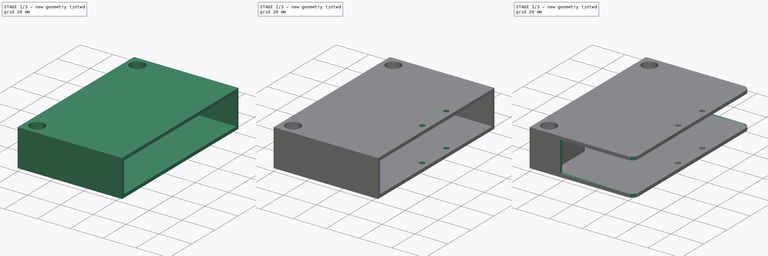
[diagram: build sequence overview — one tinted view per stage of 3, left to right]
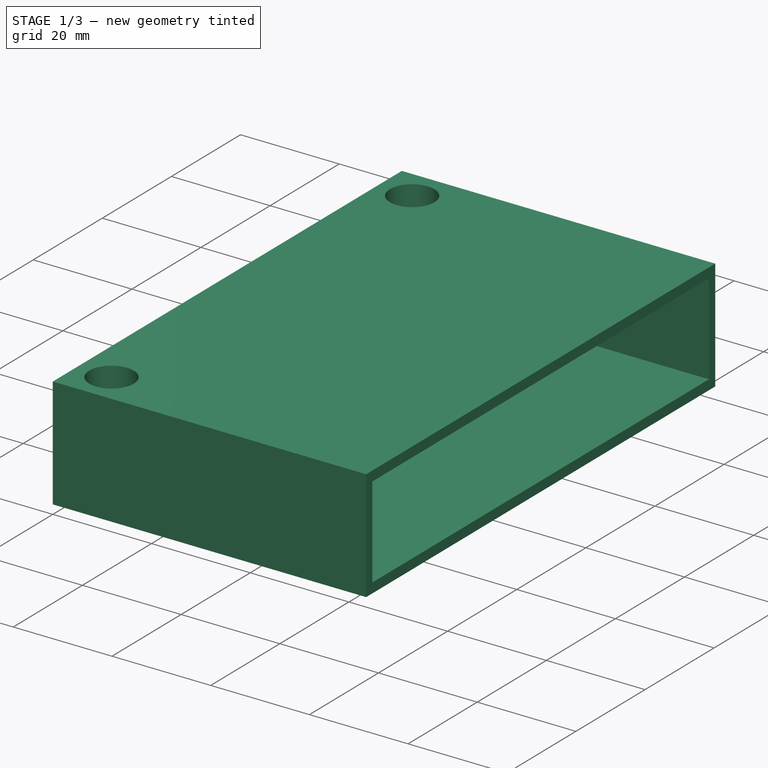
[diagram: stage 1 of 3 — iso view after this stage's code; geometry added in this stage tinted green]
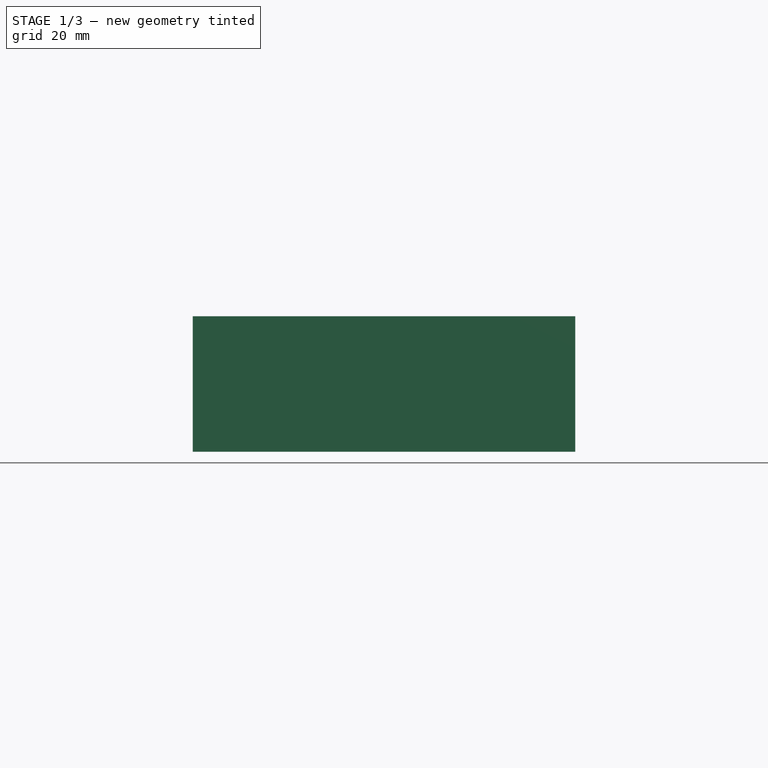
[diagram: stage 1 of 3 — front view after this stage's code; geometry added in this stage tinted green]
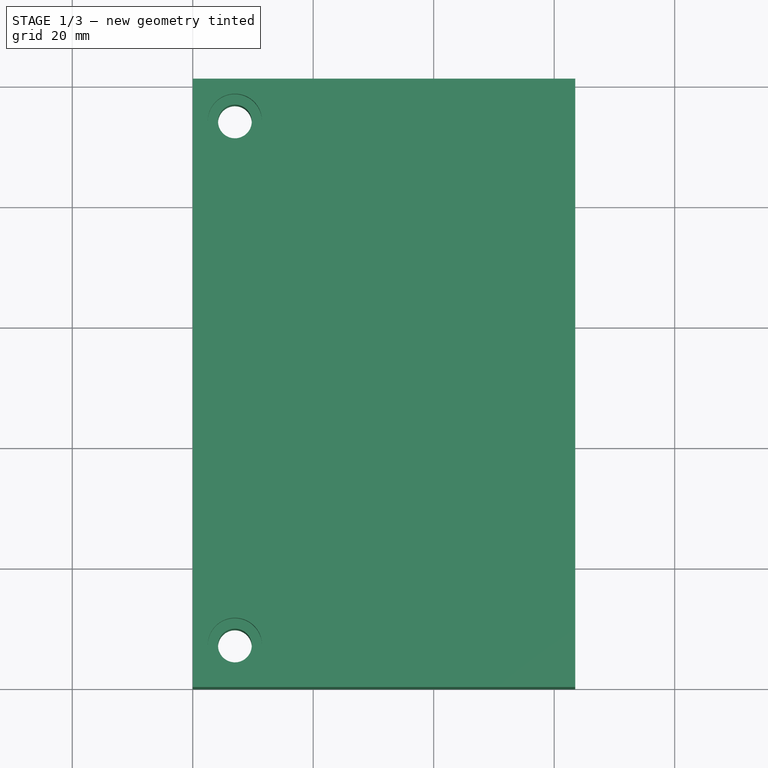
[diagram: stage 1 of 3 — top view after this stage's code; geometry added in this stage tinted green]
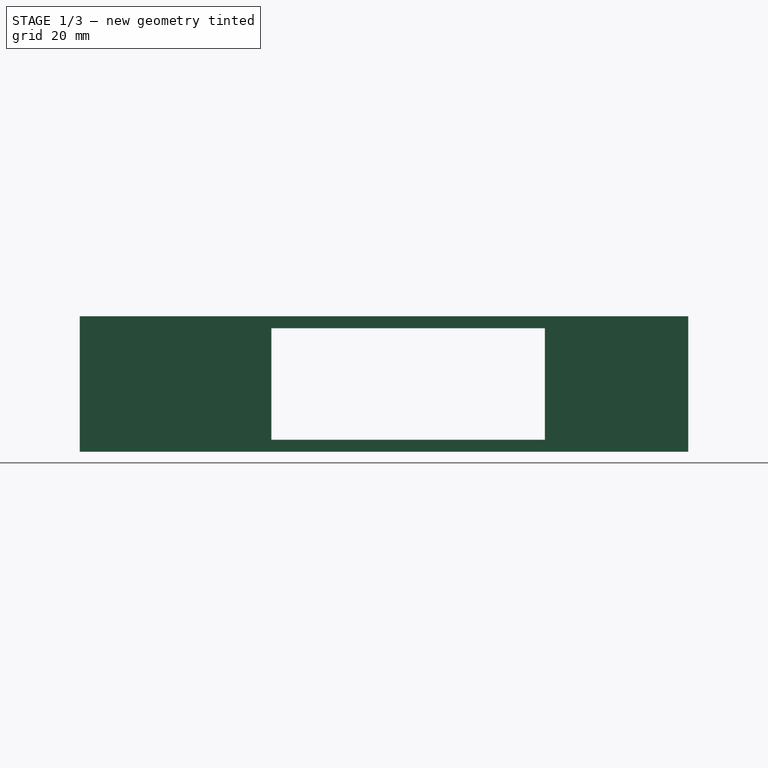
[diagram: stage 1 of 3 — right view after this stage's code; geometry added in this stage tinted green]
FCSTD DOCUMENT  (FreeCAD 1.0R39109 (Git))
Label: main_breaker_mount
License: All rights reserved
LicenseURL: https://en.wikipedia.org/wiki/All_rights_reserved
objects: Sketcher::SketchObject×6, PartDesign::Pocket×5, PartDesign::Fillet×2, PartDesign::Pad×1, PartDesign::Body×1
note: 37 computed .brp shape members not serialized (recipe doc carries the construction recipe); baked Part::Feature solids carry a one-line shape summary decoded from their .brp

FEATURE [Sketcher::SketchObject] Sketch
  ArcFitTolerance = 1e-06
  AttachmentSupport = -> [XY_Plane]
  FullyConstrained = true
  MakeInternals = false
  MapMode = 5
  sketch-geometry (14):
    g0: LineSegment StartX=0 StartY=0 StartZ=0 EndX=63.5 EndY=0 EndZ=0
    g1: LineSegment StartX=63.5 StartY=0 StartZ=0 EndX=63.5 EndY=101 EndZ=0
    g2: LineSegment StartX=63.5 StartY=101 StartZ=0 EndX=0 EndY=101 EndZ=0
    g3: LineSegment StartX=0 StartY=101 StartZ=0 EndX=0 EndY=0 EndZ=0
    g4: Circle CenterX=7 CenterY=94 CenterZ=0 NormalX=0 NormalY=0 NormalZ=1 AngleXU=0 Radius=2.8
    g5: Circle CenterX=7 CenterY=7 CenterZ=0 NormalX=0 NormalY=0 NormalZ=1 AngleXU=0 Radius=2.8
    g6: LineSegment [constr] StartX=0 StartY=77 StartZ=0 EndX=0 EndY=32 EndZ=0
    g7: LineSegment [constr] StartX=0 StartY=77 StartZ=0 EndX=14 EndY=77 EndZ=0
    g8: LineSegment [constr] StartX=0 StartY=32 StartZ=0 EndX=14 EndY=32 EndZ=0
    g9: LineSegment [constr] StartX=14 StartY=77 StartZ=0 EndX=14 EndY=99 EndZ=0
    g10: LineSegment [constr] StartX=14 StartY=32 StartZ=0 EndX=14 EndY=2 EndZ=0
    g11: LineSegment [constr] StartX=14 StartY=99 StartZ=0 EndX=63.5 EndY=99 EndZ=0
    g12: LineSegment [constr] StartX=63.5 StartY=99 StartZ=0 EndX=63.5 EndY=2 EndZ=0
    g13: LineSegment [constr] StartX=63.5 StartY=2 StartZ=0 EndX=14 EndY=2 EndZ=0
  constraints (41):
    c: Coincident(g0,g1)
    c: Coincident(g1,g2)
    c: Coincident(g2,g3)
    c: Coincident(g3,g0)
    c: Horizontal(g0)
    c: Horizontal(g2)
    c: Vertical(g1)
    c: Vertical(g3)
    c: Coincident(g0,g-1)
    c: PointOnObject(g6,g3)
    c: PointOnObject(g6,g3)
    c: Coincident(g7,g6)
    c: Horizontal(g7)
    c: Coincident(g8,g6)
    c: Horizontal(g8)
    c: DistanceY(g6,g6) = 45
    c: DistanceX(g7,g7) = 14
    c: Equal(g7,g8)
    c: Distance(g9) = 22
    c: Coincident(g9,g7)
    c: Vertical(g9)
    c: Distance(g10) = 30
    c: Coincident(g10,g8)
    c: Vertical(g10)
    c: Distance(g11) = 49.5
    c: Coincident(g11,g9)
    c: Horizontal(g11)
    c: Coincident(g12,g11)
    c: Vertical(g12)
    c: Coincident(g13,g12)
    c: Coincident(g13,g10)
    c: Horizontal(g13)
    c: Diameter(g4) = 5.6
    c: Equal(g4,g5)
    c: DistanceY(g10) = 2
    c: DistanceY(g9,g2) = 2
    c: DistanceX(g2,g4) = 7
    c: DistanceY(g4,g2) = 7
    c: DistanceY(g0,g5) = 7
    c: DistanceX(g5,g4) = 0
    c: DistanceX(g11,g1) = 0
FEATURE [PartDesign::Pad] Pad
  Direction = (0,0,1)
  Length = 22.5
  Length2 = 10
  Profile = -> Sketch
  ReferenceAxis = -> Sketch [N_Axis]
  Refine = true
  Suppressed = false
  Type = 0
FEATURE [Sketcher::SketchObject] Sketch001
  ArcFitTolerance = 1e-06
  AttachmentOffset = pos=(0,0,-2) rot=(0,0,1;0rad)
  AttachmentSupport = -> [Pad]
  FullyConstrained = true
  MakeInternals = false
  MapMode = 5
  Placement = pos=(0,0,20.5) rot=(0,0,1;0rad)
  expr: Constraints[15] = Sketch.Constraints[15]
  expr: Constraints[16] = Sketch.Constraints[16]
  expr: Constraints[18] = Sketch.Constraints[18]
  expr: Constraints[21] = Sketch.Constraints[21]
  expr: Constraints[24] = Sketch.Constraints[24]
  expr: Constraints[32] = Sketch.Constraints[32]
  expr: Constraints[34] = Sketch.Constraints[34]
  expr: Constraints[35] = Sketch.Constraints[35]
  expr: Constraints[36] = Sketch.Constraints[36]
  expr: Constraints[37] = Sketch.Constraints[37]
  expr: Constraints[38] = Sketch.Constraints[38]
  expr: Constraints[39] = Sketch.Constraints[39]
  expr: Constraints[40] = Sketch.Constraints[40]
  sketch-geometry (22):
    g0: LineSegment [constr] StartX=0 StartY=0 StartZ=0 EndX=63.5 EndY=0 EndZ=0
    g1: LineSegment [constr] StartX=63.5 StartY=0 StartZ=0 EndX=63.5 EndY=101 EndZ=0
    g2: LineSegment [constr] StartX=63.5 StartY=101 StartZ=0 EndX=0 EndY=101 EndZ=0
    g3: LineSegment [constr] StartX=0 StartY=101 StartZ=0 EndX=0 EndY=0 EndZ=0
    g4: Circle [constr] CenterX=7 CenterY=94 CenterZ=0 NormalX=0 NormalY=0 NormalZ=1 AngleXU=0 Radius=2.8
    g5: Circle [constr] CenterX=7 CenterY=7 CenterZ=0 NormalX=0 NormalY=0 NormalZ=1 AngleXU=0 Radius=2.8
    g6: LineSegment [constr] StartX=-1e-16 StartY=77 StartZ=0 EndX=0 EndY=32 EndZ=0
    g7: LineSegment [constr] StartX=-1e-16 StartY=77 StartZ=0 EndX=14 EndY=77 EndZ=0
    g8: LineSegment [constr] StartX=0 StartY=32 StartZ=0 EndX=14 EndY=32 EndZ=0
    g9: LineSegment [constr] StartX=14 StartY=77 StartZ=0 EndX=14 EndY=99 EndZ=0
    g10: LineSegment [constr] StartX=14 StartY=32 StartZ=0 EndX=14 EndY=2 EndZ=0
    g11: LineSegment [constr] StartX=14 StartY=99 StartZ=0 EndX=63.5 EndY=99 EndZ=0
    g12: LineSegment [constr] StartX=63.5 StartY=99 StartZ=0 EndX=63.5 EndY=2 EndZ=0
    g13: LineSegment [constr] StartX=63.5 StartY=2 StartZ=0 EndX=14 EndY=2 EndZ=0
    g14: LineSegment StartX=63.5 StartY=99.2 StartZ=0 EndX=63.5 EndY=1.8 EndZ=0
    g15: LineSegment StartX=0 StartY=31.8 StartZ=0 EndX=13.6 EndY=31.8 EndZ=0
    g16: LineSegment StartX=13.6 StartY=31.8 StartZ=0 EndX=13.6 EndY=1.8 EndZ=0
    g17: LineSegment StartX=13.6 StartY=1.8 StartZ=0 EndX=63.5 EndY=1.8 EndZ=0
    g18: LineSegment StartX=0 StartY=77.2 StartZ=0 EndX=13.6 EndY=77.2 EndZ=0
    g19: LineSegment StartX=13.6 StartY=77.2 StartZ=0 EndX=13.6 EndY=99.2 EndZ=0
    g20: LineSegment StartX=13.6 StartY=99.2 StartZ=0 EndX=63.5 EndY=99.2 EndZ=0
    g21: LineSegment StartX=0 StartY=77.2 StartZ=0 EndX=0 EndY=31.8 EndZ=0
  constraints (65):
    c: Coincident(g0,g1)
    c: Coincident(g1,g2)
    c: Coincident(g2,g3)
    c: Coincident(g3,g0)
    c: Horizontal(g0)
    c: Horizontal(g2)
    c: Vertical(g1)
    c: Vertical(g3)
    c: Coincident(g0,g-1)
    c: PointOnObject(g6,g3)
    c: PointOnObject(g6,g3)
    c: Coincident(g7,g6)
    c: Horizontal(g7)
    c: Coincident(g8,g6)
    c: Horizontal(g8)
    c: DistanceY(g6,g6) = 45
    c: DistanceX(g7,g7) = 14
    c: Equal(g7,g8)
    c: Distance(g9) = 22
    c: Coincident(g9,g7)
    c: Vertical(g9)
    c: Distance(g10) = 30
    c: Coincident(g10,g8)
    c: Vertical(g10)
    c: Distance(g11) = 49.5
    c: Coincident(g11,g9)
    c: Horizontal(g11)
    c: Coincident(g12,g11)
    c: Vertical(g12)
    c: Coincident(g13,g12)
    c: Coincident(g13,g10)
    c: Horizontal(g13)
    c: Diameter(g4) = 5.6
    c: Equal(g4,g5)
    c: DistanceY(g10) = 2
    c: DistanceY(g9,g2) = 2
    c: DistanceX(g2,g4) = 7
    c: DistanceY(g4,g2) = 7
    c: DistanceY(g0,g5) = 7
    c: DistanceX(g5,g4) = 0
    c: DistanceX(g11,g1) = 0
    c: PointOnObject(g14,g1)
    c: PointOnObject(g14,g1)
    c: PointOnObject(g15,g3)
    c: Horizontal(g15)
    c: Coincident(g16,g15)
    c: Vertical(g16)
    c: Coincident(g17,g16)
    c: Coincident(g17,g14)
    c: Horizontal(g17)
    c: DistanceY(g15,g6) = 0.2
    c: DistanceX(g15,g8) = 0.4
    c: DistanceY(g16,g10) = 0.2
    c: PointOnObject(g18,g3)
    c: Horizontal(g18)
    c: Coincident(g19,g18)
    c: Vertical(g19)
    c: Coincident(g20,g19)
    c: Coincident(g20,g14)
    c: Horizontal(g20)
    c: DistanceY(g6,g18) = 0.2
    c: Equal(g18,g15)
    c: Coincident(g21,g18)
    c: Coincident(g21,g15)
    c: DistanceY(g9,g19) = 0.2
FEATURE [PartDesign::Pocket] Pocket
  BaseFeature = -> Pad
  Direction = (0,0,-1)
  Length = 18.5
  Length2 = 5
  Profile = -> Sketch001
  ReferenceAxis = -> Sketch001 [N_Axis]
  Refine = true
  Suppressed = false
  Type = 0
FEATURE [Sketcher::SketchObject] Sketch002
  ArcFitTolerance = 1e-06
  AttachmentSupport = -> [Pocket]
  FullyConstrained = true
  MakeInternals = false
  MapMode = 5
  Placement = pos=(0,0,22.5) rot=(0,0,1;0rad)
  expr: Constraints[15] = Sketch.Constraints[15]
  expr: Constraints[16] = Sketch.Constraints[16]
  expr: Constraints[18] = Sketch.Constraints[18]
  expr: Constraints[21] = Sketch.Constraints[21]
  expr: Constraints[24] = Sketch.Constraints[24]
  expr: Constraints[32] = Sketch.Constraints[32]
  expr: Constraints[34] = Sketch.Constraints[34]
  expr: Constraints[35] = Sketch.Constraints[35]
  expr: Constraints[36] = Sketch.Constraints[36]
  expr: Constraints[37] = Sketch.Constraints[37]
  expr: Constraints[38] = Sketch.Constraints[38]
  expr: Constraints[39] = Sketch.Constraints[39]
  expr: Constraints[40] = Sketch.Constraints[40]
  sketch-geometry (16):
    g0: LineSegment [constr] StartX=0 StartY=0 StartZ=0 EndX=63.5 EndY=0 EndZ=0
    g1: LineSegment [constr] StartX=63.5 StartY=0 StartZ=0 EndX=63.5 EndY=101 EndZ=0
    g2: LineSegment [constr] StartX=63.5 StartY=101 StartZ=0 EndX=0 EndY=101 EndZ=0
    g3: LineSegment [constr] StartX=0 StartY=101 StartZ=0 EndX=0 EndY=0 EndZ=0
    g4: Circle [constr] CenterX=7 CenterY=94 CenterZ=0 NormalX=0 NormalY=0 NormalZ=1 AngleXU=0 Radius=2.8
    g5: Circle [constr] CenterX=7 CenterY=7 CenterZ=0 NormalX=0 NormalY=0 NormalZ=1 AngleXU=0 Radius=2.8
    g6: LineSegment [constr] StartX=0 StartY=77 StartZ=0 EndX=0 EndY=32 EndZ=0
    g7: LineSegment [constr] StartX=0 StartY=77 StartZ=0 EndX=14 EndY=77 EndZ=0
    g8: LineSegment [constr] StartX=0 StartY=32 StartZ=0 EndX=14 EndY=32 EndZ=0
    g9: LineSegment [constr] StartX=14 StartY=77 StartZ=0 EndX=14 EndY=99 EndZ=0
    g10: LineSegment [constr] StartX=14 StartY=32 StartZ=0 EndX=14 EndY=2 EndZ=0
    g11: LineSegment [constr] StartX=14 StartY=99 StartZ=0 EndX=63.5 EndY=99 EndZ=0
    g12: LineSegment [constr] StartX=63.5 StartY=99 StartZ=0 EndX=63.5 EndY=2 EndZ=0
    g13: LineSegment [constr] StartX=63.5 StartY=2 StartZ=0 EndX=14 EndY=2 EndZ=0
    g14: Circle CenterX=7 CenterY=94 CenterZ=0 NormalX=0 NormalY=0 NormalZ=1 AngleXU=0 Radius=4.5
    g15: Circle CenterX=7 CenterY=7 CenterZ=0 NormalX=0 NormalY=0 NormalZ=1 AngleXU=0 Radius=4.5
  constraints (45):
    c: Coincident(g0,g1)
    c: Coincident(g1,g2)
    c: Coincident(g2,g3)
    c: Coincident(g3,g0)
    c: Horizontal(g0)
    c: Horizontal(g2)
    c: Vertical(g1)
    c: Vertical(g3)
    c: Coincident(g0,g-1)
    c: PointOnObject(g6,g3)
    c: PointOnObject(g6,g3)
    c: Coincident(g7,g6)
    c: Horizontal(g7)
    c: Coincident(g8,g6)
    c: Horizontal(g8)
    c: DistanceY(g6,g6) = 45
    c: DistanceX(g7,g7) = 14
    c: Equal(g7,g8)
    c: Distance(g9) = 22
    c: Coincident(g9,g7)
    c: Vertical(g9)
    c: Distance(g10) = 30
    c: Coincident(g10,g8)
    c: Vertical(g10)
    c: Distance(g11) = 49.5
    c: Coincident(g11,g9)
    c: Horizontal(g11)
    c: Coincident(g12,g11)
    c: Vertical(g12)
    c: Coincident(g13,g12)
    c: Coincident(g13,g10)
    c: Horizontal(g13)
    c: Diameter(g4) = 5.6
    c: Equal(g4,g5)
    c: DistanceY(g10) = 2
    c: DistanceY(g9,g2) = 2
    c: DistanceX(g2,g4) = 7
    c: DistanceY(g4,g2) = 7
    c: DistanceY(g0,g5) = 7
    c: DistanceX(g5,g4) = 0
    c: DistanceX(g11,g1) = 0
    c: Coincident(g14,g4)
    c: Coincident(g15,g5)
    c: Diameter(g14) = 9
    c: Equal(g14,g15)
FEATURE [PartDesign::Pocket] Pocket001
  BaseFeature = -> Pocket
  Direction = (0,0,-1)
  Length = 6
  Length2 = 5
  Profile = -> Sketch002
  ReferenceAxis = -> Sketch002 [N_Axis]
  Refine = true
  Suppressed = false
  Type = 0
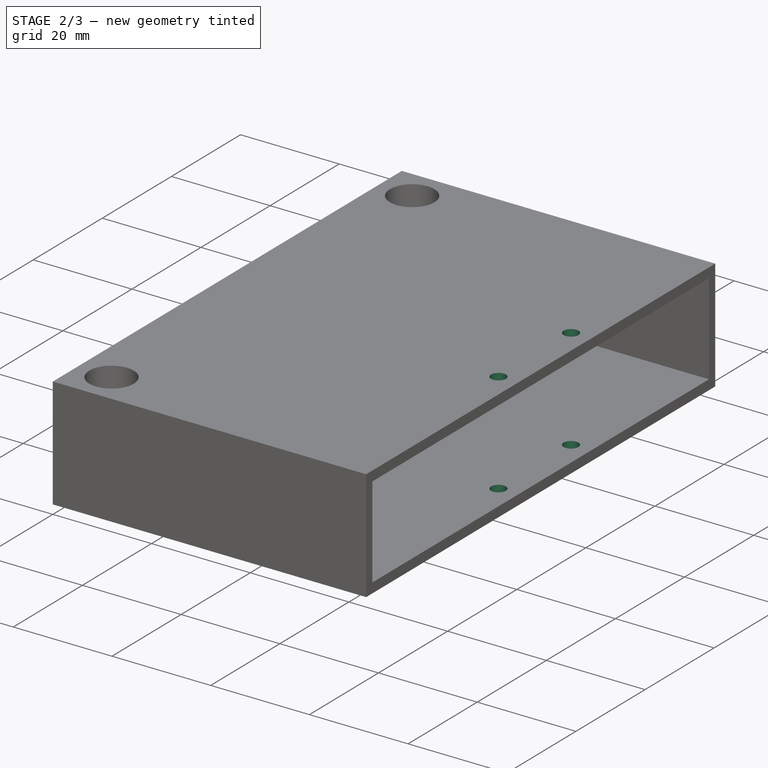
[diagram: stage 2 of 3 — iso view after this stage's code; geometry added in this stage tinted green]
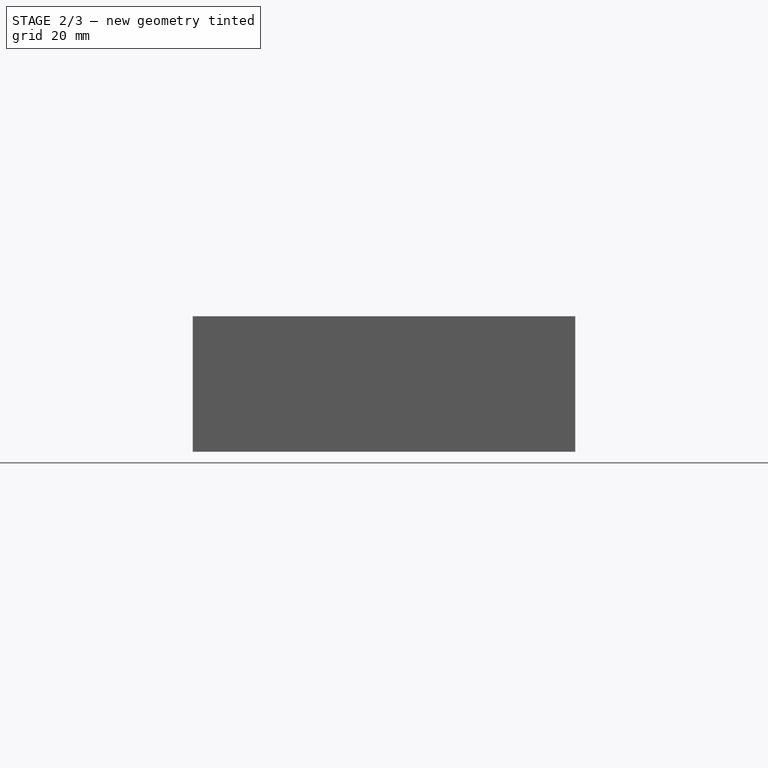
[diagram: stage 2 of 3 — front view after this stage's code; geometry added in this stage tinted green]
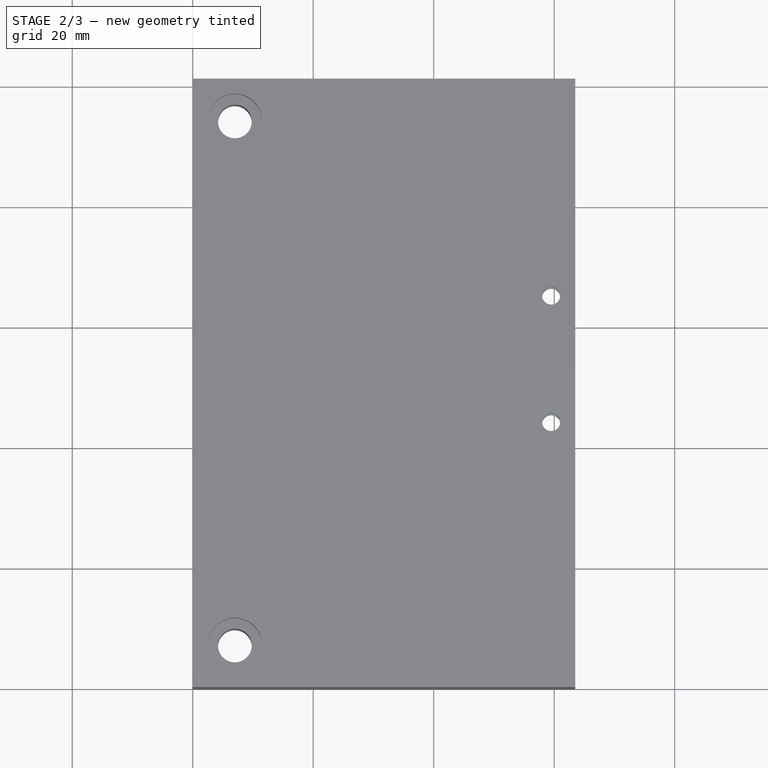
[diagram: stage 2 of 3 — top view after this stage's code; geometry added in this stage tinted green]
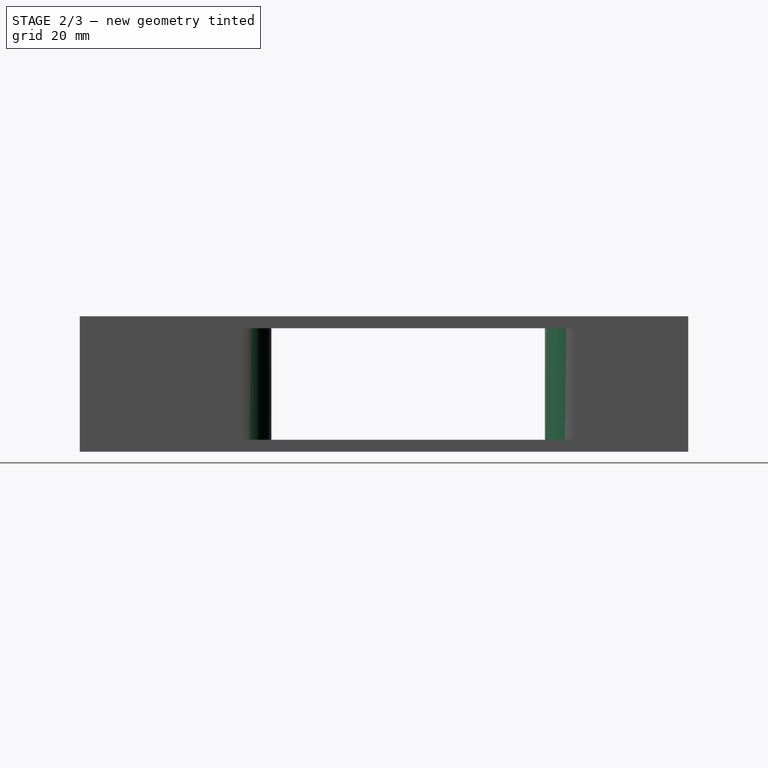
[diagram: stage 2 of 3 — right view after this stage's code; geometry added in this stage tinted green]
FEATURE [Sketcher::SketchObject] Sketch003
  ArcFitTolerance = 1e-06
  AttachmentSupport = -> [Pocket001]
  FullyConstrained = true
  MakeInternals = false
  MapMode = 5
  Placement = pos=(0,0,22.5) rot=(0,0,1;0rad)
  expr: Constraints[15] = Sketch.Constraints[15]
  expr: Constraints[16] = Sketch.Constraints[16]
  expr: Constraints[18] = Sketch.Constraints[18]
  expr: Constraints[21] = Sketch.Constraints[21]
  expr: Constraints[24] = Sketch.Constraints[24]
  expr: Constraints[32] = Sketch.Constraints[32]
  expr: Constraints[34] = Sketch.Constraints[34]
  expr: Constraints[35] = Sketch.Constraints[35]
  expr: Constraints[36] = Sketch.Constraints[36]
  expr: Constraints[37] = Sketch.Constraints[37]
  expr: Constraints[38] = Sketch.Constraints[38]
  expr: Constraints[39] = Sketch.Constraints[39]
  expr: Constraints[40] = Sketch.Constraints[40]
  sketch-geometry (16):
    g0: LineSegment [constr] StartX=0 StartY=0 StartZ=0 EndX=63.5 EndY=0 EndZ=0
    g1: LineSegment [constr] StartX=63.5 StartY=0 StartZ=0 EndX=63.5 EndY=101 EndZ=0
    g2: LineSegment [constr] StartX=63.5 StartY=101 StartZ=0 EndX=0 EndY=101 EndZ=0
    g3: LineSegment [constr] StartX=0 StartY=101 StartZ=0 EndX=0 EndY=0 EndZ=0
    g4: Circle [constr] CenterX=7 CenterY=94 CenterZ=0 NormalX=0 NormalY=0 NormalZ=1 AngleXU=0 Radius=2.8
    g5: Circle [constr] CenterX=7 CenterY=7 CenterZ=0 NormalX=0 NormalY=0 NormalZ=1 AngleXU=0 Radius=2.8
    g6: LineSegment [constr] StartX=0 StartY=77 StartZ=0 EndX=0 EndY=32 EndZ=0
    g7: LineSegment [constr] StartX=0 StartY=77 StartZ=0 EndX=14 EndY=77 EndZ=0
    g8: LineSegment [constr] StartX=0 StartY=32 StartZ=0 EndX=14 EndY=32 EndZ=0
    g9: LineSegment [constr] StartX=14 StartY=77 StartZ=0 EndX=14 EndY=99 EndZ=0
    g10: LineSegment [constr] StartX=14 StartY=32 StartZ=0 EndX=14 EndY=2 EndZ=0
    g11: LineSegment [constr] StartX=14 StartY=99 StartZ=0 EndX=63.5 EndY=99 EndZ=0
    g12: LineSegment [constr] StartX=63.5 StartY=99 StartZ=0 EndX=63.5 EndY=2 EndZ=0
    g13: LineSegment [constr] StartX=63.5 StartY=2 StartZ=0 EndX=14 EndY=2 EndZ=0
    g14: Circle CenterX=59.5 CenterY=65 CenterZ=0 NormalX=0 NormalY=0 NormalZ=1 AngleXU=0 Radius=1.5
    g15: Circle CenterX=59.5 CenterY=44 CenterZ=0 NormalX=0 NormalY=0 NormalZ=1 AngleXU=0 Radius=1.5
  constraints (47):
    c: Coincident(g0,g1)
    c: Coincident(g1,g2)
    c: Coincident(g2,g3)
    c: Coincident(g3,g0)
    c: Horizontal(g0)
    c: Horizontal(g2)
    c: Vertical(g1)
    c: Vertical(g3)
    c: Coincident(g0,g-1)
    c: PointOnObject(g6,g3)
    c: PointOnObject(g6,g3)
    c: Coincident(g7,g6)
    c: Horizontal(g7)
    c: Coincident(g8,g6)
    c: Horizontal(g8)
    c: DistanceY(g6,g6) = 45
    c: DistanceX(g7,g7) = 14
    c: Equal(g7,g8)
    c: Distance(g9) = 22
    c: Coincident(g9,g7)
    c: Vertical(g9)
    c: Distance(g10) = 30
    c: Coincident(g10,g8)
    c: Vertical(g10)
    c: Distance(g11) = 49.5
    c: Coincident(g11,g9)
    c: Horizontal(g11)
    c: Coincident(g12,g11)
    c: Vertical(g12)
    c: Coincident(g13,g12)
    c: Coincident(g13,g10)
    c: Horizontal(g13)
    c: Diameter(g4) = 5.6
    c: Equal(g4,g5)
    c: DistanceY(g10) = 2
    c: DistanceY(g9,g2) = 2
    c: DistanceX(g2,g4) = 7
    c: DistanceY(g4,g2) = 7
    c: DistanceY(g0,g5) = 7
    c: DistanceX(g5,g4) = 0
    c: DistanceX(g11,g1) = 0
    c: DistanceY(g14,g7) = 12
    c: DistanceY(g8,g15) = 12
    c: Equal(g14,g15)
    c: Diameter(g14) = 3
    c: DistanceX(g15,g14) = 0
    c: DistanceX(g14,g11) = 4
FEATURE [PartDesign::Pocket] Pocket002
  BaseFeature = -> Pocket001
  Direction = (0,0,-1)
  Length = 5
  Length2 = 5
  Profile = -> Sketch003
  ReferenceAxis = -> Sketch003 [N_Axis]
  Refine = true
  Suppressed = false
  Type = 1
FEATURE [PartDesign::Fillet] Fillet
  Base = -> Pocket002 [Edge37,Edge46]
  BaseFeature = -> Pocket002
  Radius = 5
  Refine = true
  SupportTransform = false
  Suppressed = false
  UseAllEdges = false
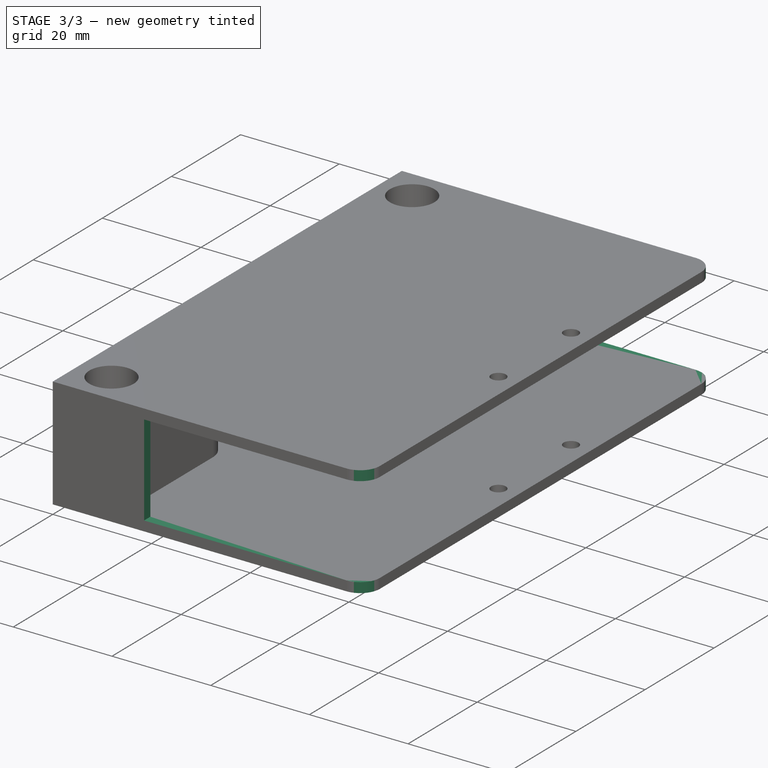
[diagram: stage 3 of 3 — iso view after this stage's code; geometry added in this stage tinted green]
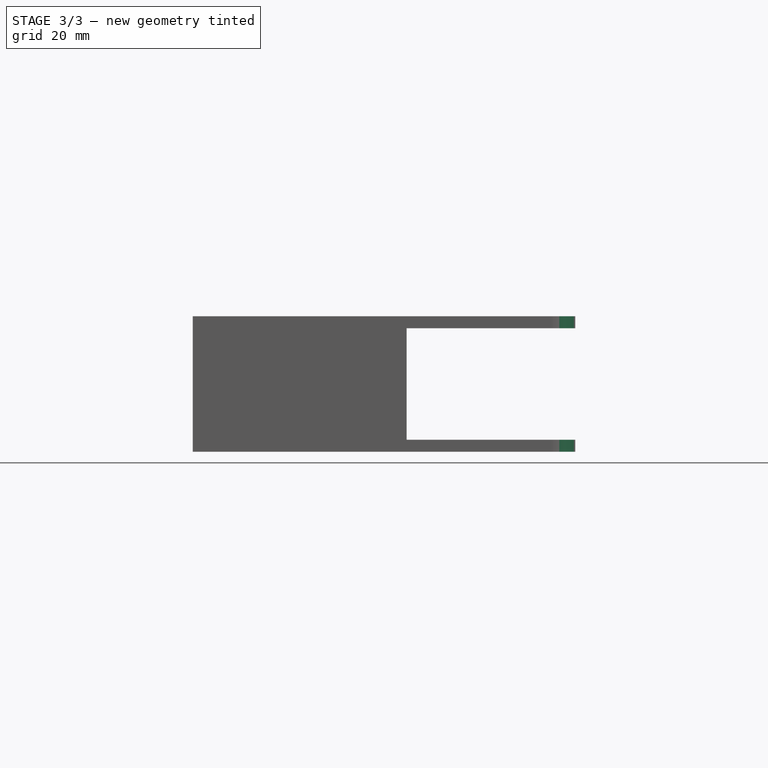
[diagram: stage 3 of 3 — front view after this stage's code; geometry added in this stage tinted green]
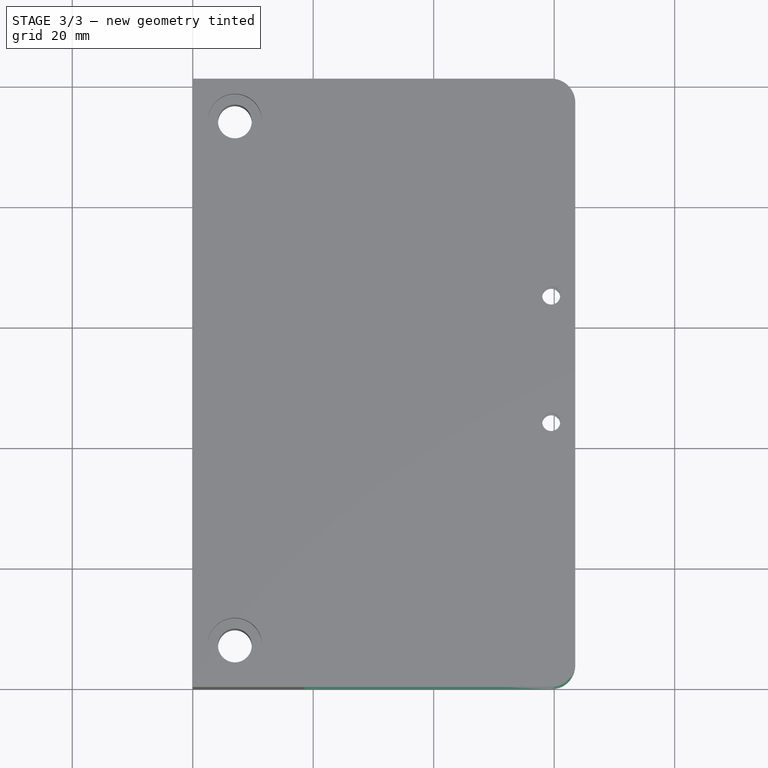
[diagram: stage 3 of 3 — top view after this stage's code; geometry added in this stage tinted green]
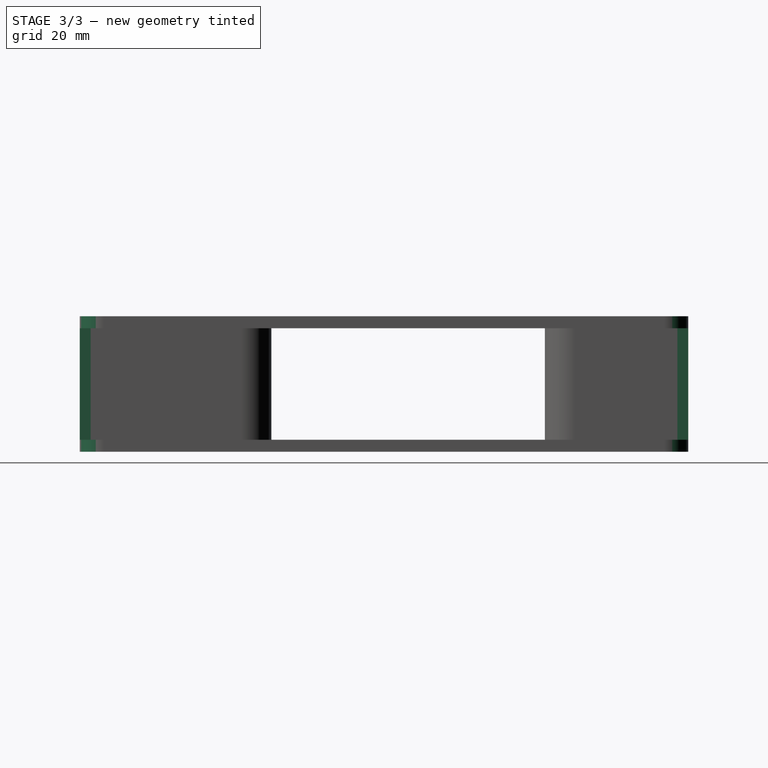
[diagram: stage 3 of 3 — right view after this stage's code; geometry added in this stage tinted green]
FEATURE [Sketcher::SketchObject] Sketch004
  ArcFitTolerance = 1e-06
  AttachmentSupport = -> [Fillet]
  FullyConstrained = true
  MakeInternals = false
  MapMode = 5
  Placement = pos=(0,101,0) rot=(0,0.707107,0.707107;3.14159rad)
  sketch-geometry (4):
    g0: LineSegment StartX=-63.5 StartY=20.5 StartZ=0 EndX=-63.5 EndY=2 EndZ=0
    g1: LineSegment StartX=-63.5 StartY=2 StartZ=0 EndX=-35.5 EndY=2 EndZ=0
    g2: LineSegment StartX=-35.5 StartY=2 StartZ=0 EndX=-35.5 EndY=20.5 EndZ=0
    g3: LineSegment StartX=-35.5 StartY=20.5 StartZ=0 EndX=-63.5 EndY=20.5 EndZ=0
  constraints (12):
    c: Coincident(g0,g1)
    c: Coincident(g1,g2)
    c: Coincident(g2,g3)
    c: Coincident(g3,g0)
    c: Vertical(g0)
    c: Vertical(g2)
    c: Horizontal(g1)
    c: Horizontal(g3)
    c: DistanceX(g3,g3) = 28
    c: DistanceY(g0,g0) = 18.5
    c: DistanceY(g1) = 2
    c: DistanceX(g0) = -63.5
FEATURE [PartDesign::Pocket] Pocket003
  BaseFeature = -> Fillet
  Direction = (0,-1,2e-16)
  Length = 2
  Length2 = 5
  Profile = -> Sketch004
  ReferenceAxis = -> Sketch004 [N_Axis]
  Refine = true
  Suppressed = false
  Type = 0
FEATURE [Sketcher::SketchObject] Sketch005
  ArcFitTolerance = 1e-06
  AttachmentSupport = -> [Pocket003]
  FullyConstrained = true
  MakeInternals = false
  MapMode = 5
  Placement = pos=(0,0,0) rot=(1,0,0;1.5708rad)
  sketch-geometry (4):
    g0: LineSegment StartX=63.5 StartY=20.5 StartZ=0 EndX=18.5 EndY=20.5 EndZ=0
    g1: LineSegment StartX=18.5 StartY=20.5 StartZ=0 EndX=18.5 EndY=2 EndZ=0
    g2: LineSegment StartX=18.5 StartY=2 StartZ=0 EndX=63.5 EndY=2 EndZ=0
    g3: LineSegment StartX=63.5 StartY=2 StartZ=0 EndX=63.5 EndY=20.5 EndZ=0
  constraints (12):
    c: Coincident(g0,g1)
    c: Coincident(g1,g2)
    c: Coincident(g2,g3)
    c: Coincident(g3,g0)
    c: Horizontal(g0)
    c: Horizontal(g2)
    c: Vertical(g1)
    c: Vertical(g3)
    c: DistanceY(g1,g1) = 18.5
    c: DistanceY(g1) = 2
    c: DistanceX(g0,g0) = 45
    c: DistanceX(g1) = 18.5
FEATURE [PartDesign::Pocket] Pocket004
  BaseFeature = -> Pocket003
  Direction = (0,1,-2e-16)
  Length = 2
  Length2 = 5
  Profile = -> Sketch005
  ReferenceAxis = -> Sketch005 [N_Axis]
  Refine = true
  Suppressed = false
  Type = 0
FEATURE [PartDesign::Fillet] Fillet001
  Base = -> Pocket004 [Edge39,Edge47,Edge36,Edge32]
  BaseFeature = -> Pocket004
  Radius = 4
  Refine = true
  SupportTransform = false
  Suppressed = false
  UseAllEdges = false
FEATURE [PartDesign::Body] Body
  AllowCompound = false
  Group = -> [Sketch,Pad,Sketch001,Pocket,Sketch002,Pocket001,Sketch003,Pocket002,Fillet,Sketch004,Pocket003,Sketch005,Pocket004,Fillet001]
  Origin = -> Origin
  Tip = -> Fillet001
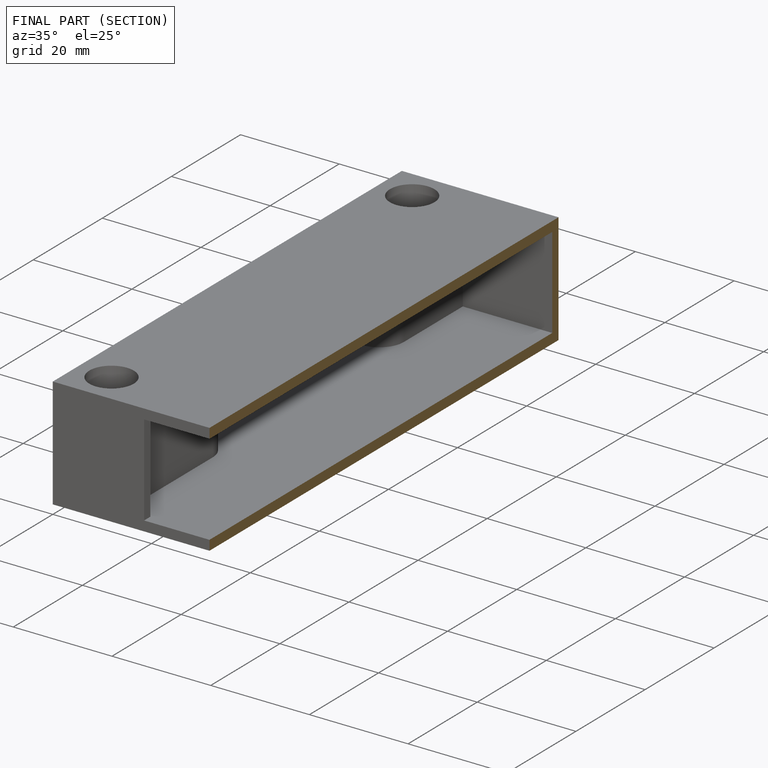
[diagram: finished part — half-section view (interior)]
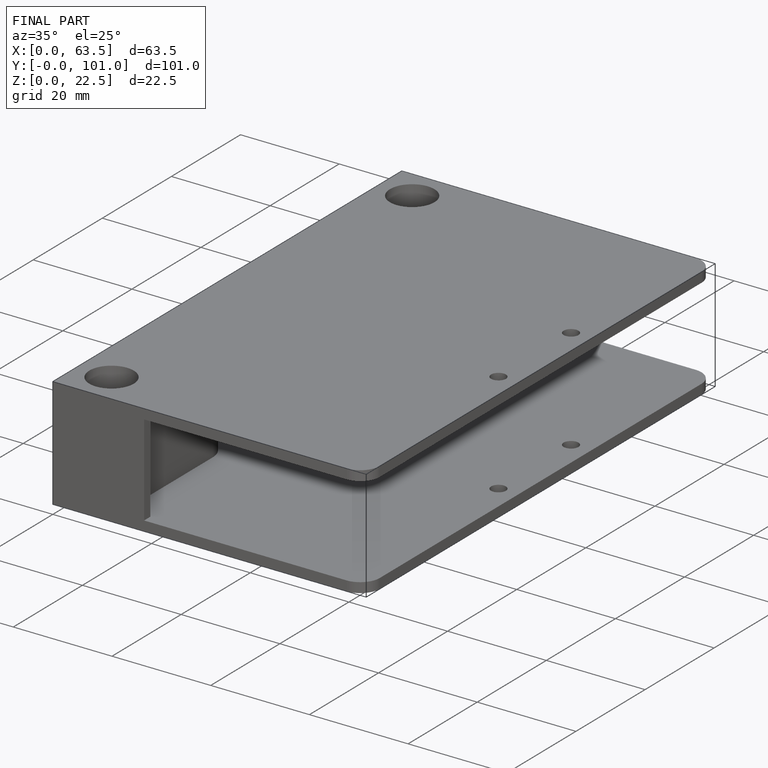
[diagram: finished part — iso view with bounding-box wireframe]
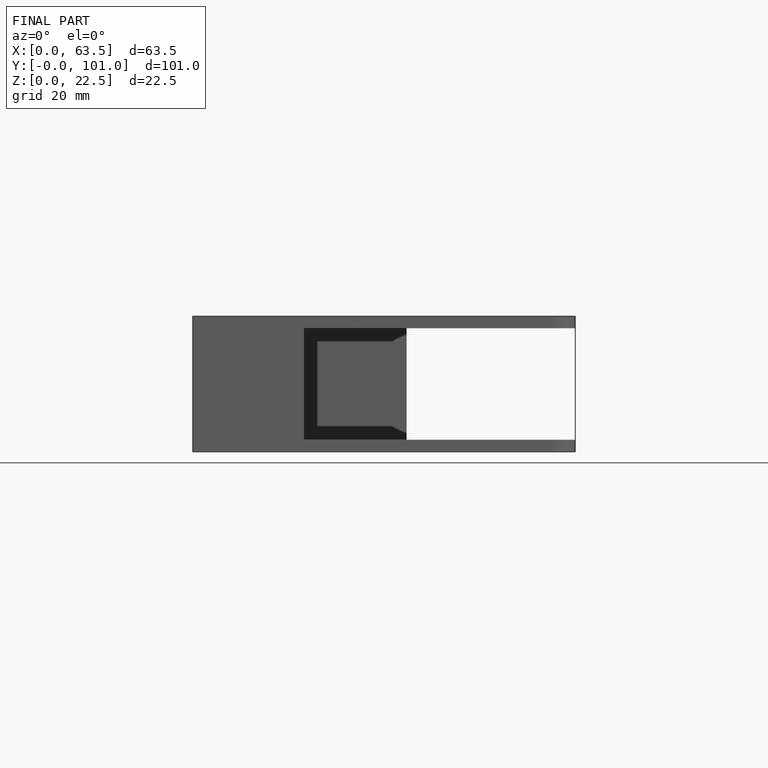
[diagram: finished part — front view with bounding-box wireframe]
